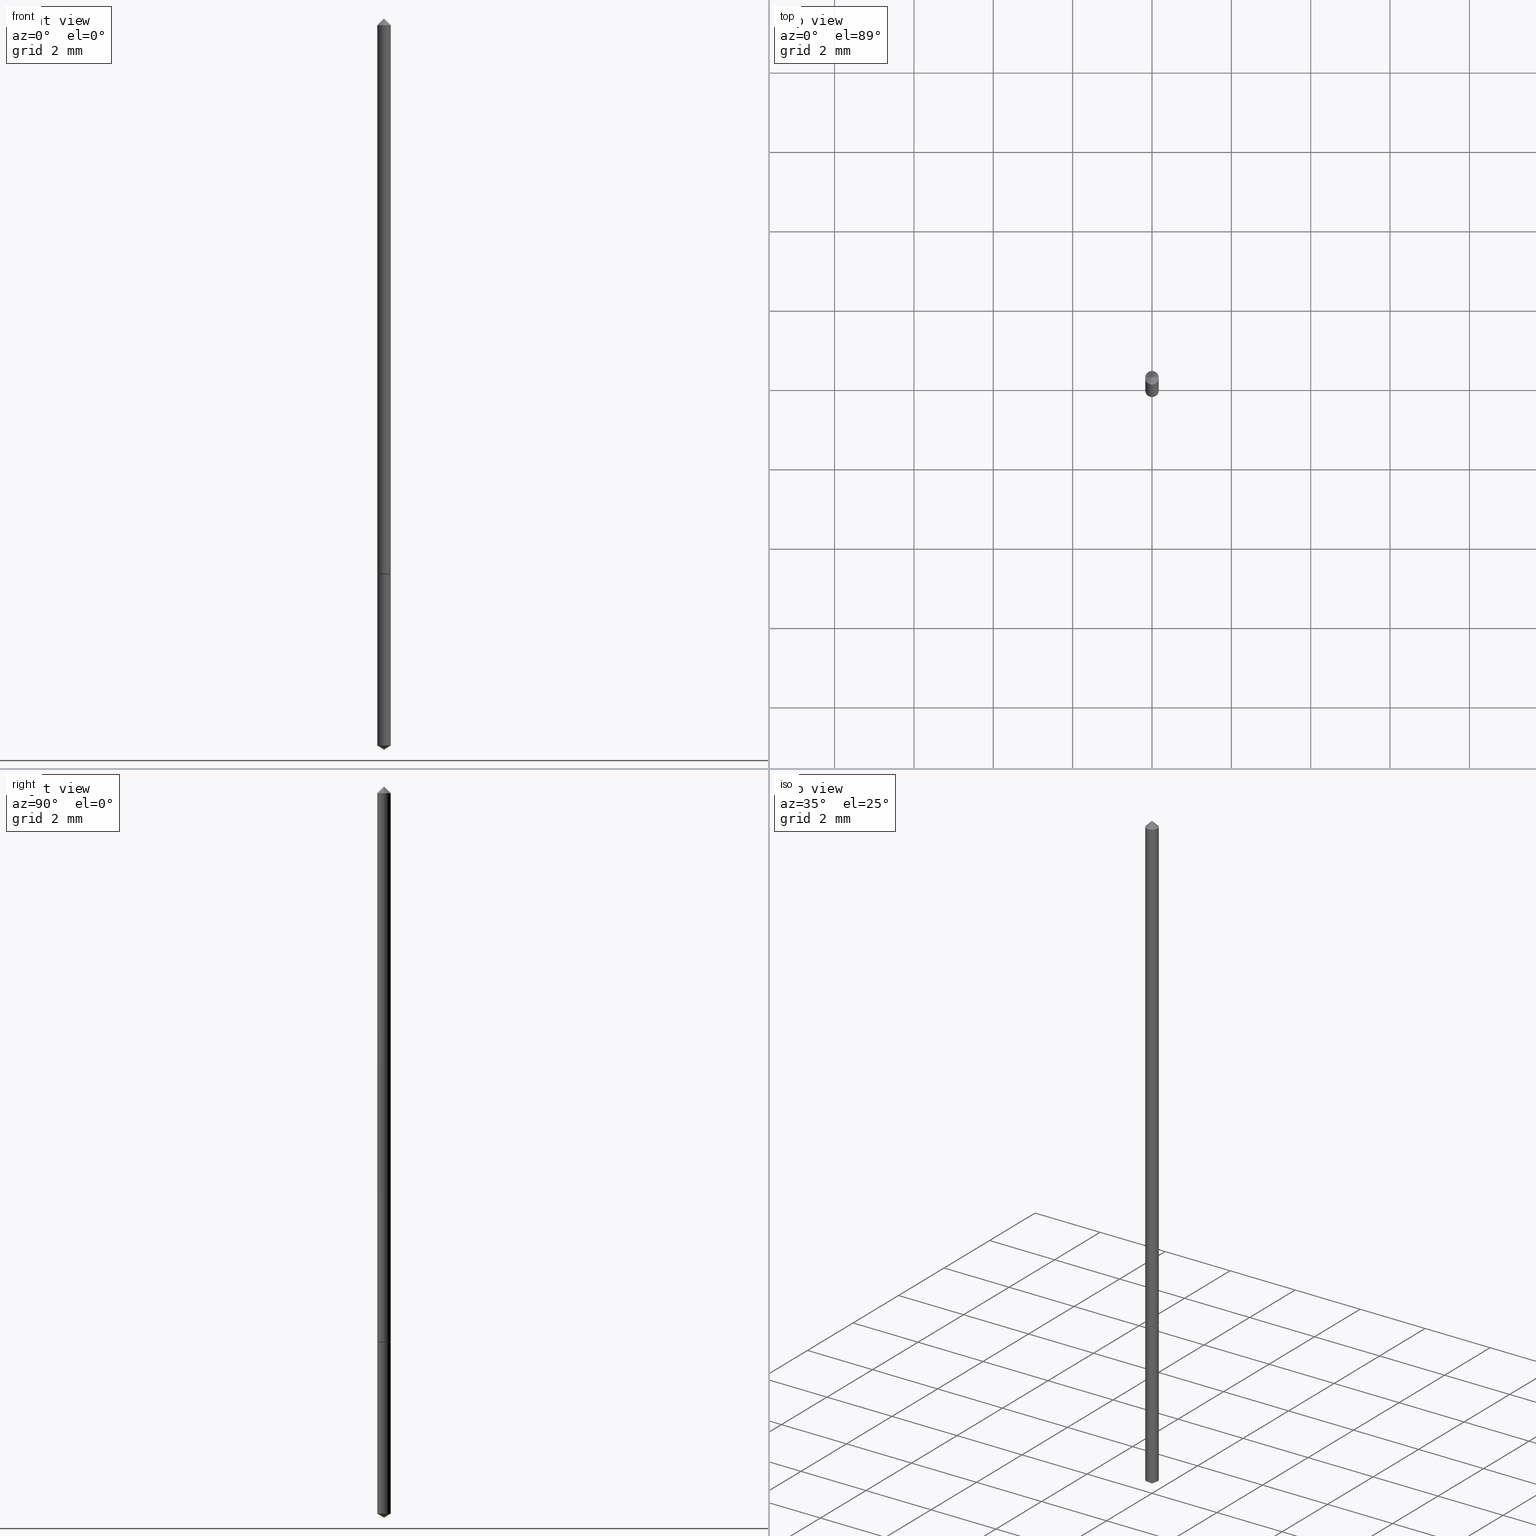
[diagram: canonical four-view strip — front | top / right | iso, engineering-drawing reading convention]
A machine part, canonical four-view strip (front | top / right | iso — engineering-drawing reading convention). The complete STEP part file that produces these views, byte-faithful:
ISO-10303-21;
HEADER;
FILE_DESCRIPTION (( 'STEP AP203' ),
    '1' );
FILE_NAME ('51080.STEP',
    '2024-04-22T18:25:43',
    ( '' ),
    ( '' ),
    'SwSTEP 2.0',
    'SolidWorks 2023',
    '' );
FILE_SCHEMA (( 'CONFIG_CONTROL_DESIGN' ));
ENDSEC;

DATA;
#1 = CARTESIAN_POINT ( 'NONE',  ( 0.000000000000000000, 0.000000000000000000, 0.000000000000000000 ) ) ;
#2 = DIRECTION ( 'NONE',  ( -1.000000000000000000, 6.982962677686266711E-15, 0.000000000000000000 ) ) ;
#3 = FACE_OUTER_BOUND ( 'NONE', #212, .T. ) ;
#4 = ORIENTED_EDGE ( 'NONE', *, *, #35, .F. ) ;
#5 = LINE ( 'NONE', #342, #113 ) ;
#6 = AXIS2_PLACEMENT_3D ( 'NONE', #131, #194, #250 ) ;
#7 = PERSON_AND_ORGANIZATION_ROLE ( 'creator' ) ;
#8 = DIRECTION ( 'NONE',  ( -2.445468806185136597E-29, 3.491481338843145583E-15, 1.000000000000000000 ) ) ;
#9 = EDGE_CURVE ( 'NONE', #336, #38, #234, .T. ) ;
#10 = PERSON_AND_ORGANIZATION ( #245, #51 ) ;
#11 = ORIENTED_EDGE ( 'NONE', *, *, #42, .F. ) ;
#12 = CIRCLE ( 'NONE', #67, 0.006250000000000069736 ) ;
#13 = PERSON_AND_ORGANIZATION ( #245, #51 ) ;
#14 = ORIENTED_EDGE ( 'NONE', *, *, #141, .F. ) ;
#15 = PERSON_AND_ORGANIZATION ( #245, #51 ) ;
#16 = EDGE_CURVE ( 'NONE', #38, #173, #151, .T. ) ;
#17 = EDGE_LOOP ( 'NONE', ( #195, #357 ) ) ;
#18 = LOCAL_TIME ( 14, 25, 43.00000000000000000, #43 ) ;
#19 = DIRECTION ( 'NONE',  ( 1.000000000000000000, -6.982962677686267499E-15, 0.000000000000000000 ) ) ;
#20 = CIRCLE ( 'NONE', #117, 0.006749999999999999924 ) ;
#21 = DIRECTION ( 'NONE',  ( -2.445468806185136597E-29, 3.491481338843145583E-15, 1.000000000000000000 ) ) ;
#22 = DIRECTION ( 'NONE',  ( 1.000000000000000000, -6.982962677686254878E-15, 0.000000000000000000 ) ) ;
#23 = FACE_OUTER_BOUND ( 'NONE', #94, .T. ) ;
#24 = AXIS2_PLACEMENT_3D ( 'NONE', #280, #21, #22 ) ;
#25 = ADVANCED_FACE ( 'NONE', ( #102 ), #185, .T. ) ;
#26 = DIRECTION ( 'NONE',  ( 2.445574428744949596E-29, -3.491330081325830103E-15, -1.000000000000000000 ) ) ;
#27 = CARTESIAN_POINT ( 'NONE',  ( 7.642090019328600035E-31, -1.091087918388489897E-16, -0.03125000000000020123 ) ) ;
#28 = VECTOR ( 'NONE', #78, 39.37007874015748854 ) ;
#29 = DIRECTION ( 'NONE',  ( -2.445574428744949876E-29, 3.491330081325830103E-15, 1.000000000000000000 ) ) ;
#30 = ADVANCED_FACE ( 'NONE', ( #354 ), #125, .T. ) ;
#31 = EDGE_LOOP ( 'NONE', ( #80, #188, #87, #157 ) ) ;
#32 = PRODUCT_DEFINITION_FORMATION_WITH_SPECIFIED_SOURCE ( 'ANY', '', #243, .NOT_KNOWN. ) ;
#33 = CARTESIAN_POINT ( 'NONE',  ( 4.796163466382499209E-17, 0.006749999999997394369, -0.7459441908215641570 ) ) ;
#34 = AXIS2_PLACEMENT_3D ( 'NONE', #50, #281, #160 ) ;
#35 = EDGE_CURVE ( 'NONE', #336, #305, #45, .T. ) ;
#36 = APPLICATION_PROTOCOL_DEFINITION ( 'international standard', 'config_control_design', 1994, #158 ) ;
#37 = CC_DESIGN_PERSON_AND_ORGANIZATION_ASSIGNMENT ( #15, #91, ( #243 ) ) ;
#38 = VERTEX_POINT ( 'NONE', #320 ) ;
#39 = DATE_AND_TIME ( #326, #288 ) ;
#40 = DIRECTION ( 'NONE',  ( 1.000000000000000000, -6.982962677686260400E-15, 0.000000000000000000 ) ) ;
#41 = VERTEX_POINT ( 'NONE', #291 ) ;
#42 = EDGE_CURVE ( 'NONE', #305, #173, #85, .T. ) ;
#43 = COORDINATED_UNIVERSAL_TIME_OFFSET ( 5, 0, .BEHIND. ) ;
#44 = EDGE_LOOP ( 'NONE', ( #144, #92, #294 ) ) ;
#45 = LINE ( 'NONE', #275, #191 ) ;
#46 = DESIGN_CONTEXT ( 'detailed design', #158, 'design' ) ;
#47 = LINE ( 'NONE', #225, #101 ) ;
#48 = VECTOR ( 'NONE', #362, 39.37007874015748143 ) ;
#49 = DIRECTION ( 'NONE',  ( -2.445574428744949876E-29, 3.491330081325830103E-15, 1.000000000000000000 ) ) ;
#50 = CARTESIAN_POINT ( 'NONE',  ( 1.408590032362638810E-29, -2.011093251173652181E-15, -0.5760000000000000675 ) ) ;
#51 = ORGANIZATION ( 'UNSPECIFIED', 'UNSPECIFIED', '' ) ;
#52 = PLANE ( 'NONE',  #259 ) ;
#53 = ORIENTED_EDGE ( 'NONE', *, *, #145, .F. ) ;
#54 = AXIS2_PLACEMENT_3D ( 'NONE', #331, #70, #159 ) ;
#55 = FACE_OUTER_BOUND ( 'NONE', #264, .T. ) ;
#56 = DIRECTION ( 'NONE',  ( 0.7071067811865450192, -7.319954787623246579E-15, -0.7071067811865500152 ) ) ;
#57 = CIRCLE ( 'NONE', #235, 0.006750000000000004260 ) ;
#58 = CARTESIAN_POINT ( 'NONE',  ( -0.006750000000000004260, -6.197379376446666772E-17, -0.03125000000000020123 ) ) ;
#59 = FACE_OUTER_BOUND ( 'NONE', #44, .T. ) ;
#60 = AXIS2_PLACEMENT_3D ( 'NONE', #84, #313, #262 ) ;
#61 = ORIENTED_EDGE ( 'NONE', *, *, #282, .F. ) ;
#62 = VERTEX_POINT ( 'NONE', #193 ) ;
#63 = APPROVAL_DATE_TIME ( #323, #270 ) ;
#64 = ORIENTED_EDGE ( 'NONE', *, *, #347, .F. ) ;
#65 = APPROVAL ( #152, 'UNSPECIFIED' ) ;
#66 = APPROVAL_STATUS ( 'not_yet_approved' ) ;
#67 = AXIS2_PLACEMENT_3D ( 'NONE', #170, #227, #116 ) ;
#68 = ORIENTED_EDGE ( 'NONE', *, *, #169, .F. ) ;
#69 = DIRECTION ( 'NONE',  ( -2.445574428744949876E-29, 3.491330081325830103E-15, 1.000000000000000000 ) ) ;
#70 = DIRECTION ( 'NONE',  ( -2.445468806185136597E-29, 3.491481338843145583E-15, 1.000000000000000000 ) ) ;
#71 = CC_DESIGN_APPROVAL ( #65, ( #306 ) ) ;
#72 = EDGE_CURVE ( 'NONE', #351, #336, #307, .T. ) ;
#73 = FACE_OUTER_BOUND ( 'NONE', #286, .T. ) ;
#74 = LINE ( 'NONE', #107, #260 ) ;
#75 = ORIENTED_EDGE ( 'NONE', *, *, #109, .F. ) ;
#76 = DIRECTION ( 'NONE',  ( -2.445574428744949876E-29, 3.491330081325830103E-15, 1.000000000000000000 ) ) ;
#77 = ADVANCED_FACE ( 'NONE', ( #110 ), #52, .F. ) ;
#78 = DIRECTION ( 'NONE',  ( -5.985567269335975989E-15, -0.8571673007021152202, 0.5150380749100490485 ) ) ;
#79 = CLOSED_SHELL ( 'NONE', ( #25, #104, #340, #355, #215, #231, #254 ) ) ;
#80 = ORIENTED_EDGE ( 'NONE', *, *, #347, .T. ) ;
#81 = DIRECTION ( 'NONE',  ( 0.000000000000000000, 0.000000000000000000, 1.000000000000000000 ) ) ;
#82 = EDGE_CURVE ( 'NONE', #97, #244, #283, .T. ) ;
#83 = DIRECTION ( 'NONE',  ( -6.982962677686268288E-15, -1.000000000000000000, 3.468864327941521245E-15 ) ) ;
#84 = CARTESIAN_POINT ( 'NONE',  ( 1.408590032362638810E-29, -2.011093251173652181E-15, -0.5760000000000000675 ) ) ;
#85 = CIRCLE ( 'NONE', #122, 0.006750000000000004260 ) ;
#86 = DIRECTION ( 'NONE',  ( 1.000000000000000000, -6.982962677686267499E-15, 0.000000000000000000 ) ) ;
#87 = ORIENTED_EDGE ( 'NONE', *, *, #88, .F. ) ;
#88 = EDGE_CURVE ( 'NONE', #244, #224, #164, .T. ) ;
#89 =( CONVERSION_BASED_UNIT ( 'INCH', #348 ) LENGTH_UNIT ( ) NAMED_UNIT ( #319 ) );
#90 =( GEOMETRIC_REPRESENTATION_CONTEXT ( 3 ) GLOBAL_UNCERTAINTY_ASSIGNED_CONTEXT ( ( #219 ) ) GLOBAL_UNIT_ASSIGNED_CONTEXT ( ( #89, #168, #205 ) ) REPRESENTATION_CONTEXT ( 'NONE', 'WORKASPACE' ) );
#91 = PERSON_AND_ORGANIZATION_ROLE ( 'design_owner' ) ;
#92 = ORIENTED_EDGE ( 'NONE', *, *, #312, .T. ) ;
#93 = VECTOR ( 'NONE', #364, 39.37007874015748143 ) ;
#94 = EDGE_LOOP ( 'NONE', ( #242, #322, #180, #182 ) ) ;
#95 = COORDINATED_UNIVERSAL_TIME_OFFSET ( 5, 0, .BEHIND. ) ;
#96 = ORIENTED_EDGE ( 'NONE', *, *, #35, .T. ) ;
#97 = VERTEX_POINT ( 'NONE', #334 ) ;
#98 = MANIFOLD_SOLID_BREP ( 'Body-Move/Copy2[1]', #178 ) ;
#99 = PERSON_AND_ORGANIZATION ( #245, #51 ) ;
#100 = AXIS2_PLACEMENT_3D ( 'NONE', #108, #49, #161 ) ;
#101 = VECTOR ( 'NONE', #309, 39.37007874015748143 ) ;
#102 = FACE_OUTER_BOUND ( 'NONE', #176, .T. ) ;
#103 = CARTESIAN_POINT ( 'NONE',  ( 4.796163466382502906E-17, 0.006749999999997988512, -0.5760000000000000675 ) ) ;
#104 = ADVANCED_FACE ( 'NONE', ( #223 ), #337, .T. ) ;
#105 = CYLINDRICAL_SURFACE ( 'NONE', #54, 0.006750000000000037220 ) ;
#106 = CC_DESIGN_APPROVAL ( #335, ( #252 ) ) ;
#107 = CARTESIAN_POINT ( 'NONE',  ( 4.796163466382084440E-17, 0.006749999999997988512, -0.5760000000000000675 ) ) ;
#108 = CARTESIAN_POINT ( 'NONE',  ( 1.408590032362638810E-29, -2.011093251173652181E-15, -0.5760000000000000675 ) ) ;
#109 = EDGE_CURVE ( 'NONE', #327, #224, #74, .T. ) ;
#110 = FACE_OUTER_BOUND ( 'NONE', #238, .T. ) ;
#111 = DIRECTION ( 'NONE',  ( 1.000000000000000000, 0.000000000000000000, 0.000000000000000000 ) ) ;
#112 = AXIS2_PLACEMENT_3D ( 'NONE', #266, #247, #214 ) ;
#113 = VECTOR ( 'NONE', #56, 39.37007874015748143 ) ;
#114 = CARTESIAN_POINT ( 'NONE',  ( -0.006250000000000069736, -1.964035103014534087E-15, -0.5760000000000000675 ) ) ;
#115 = DIRECTION ( 'NONE',  ( -2.445574428744949876E-29, 3.491330081325830103E-15, 1.000000000000000000 ) ) ;
#116 = DIRECTION ( 'NONE',  ( 1.000000000000000000, -6.982962677686254878E-15, 0.000000000000000000 ) ) ;
#117 = AXIS2_PLACEMENT_3D ( 'NONE', #146, #285, #203 ) ;
#118 = CARTESIAN_POINT ( 'NONE',  ( -4.713499807436820261E-17, -0.006750000000002011336, -0.5760000000000000675 ) ) ;
#119 = ORIENTED_EDGE ( 'NONE', *, *, #169, .T. ) ;
#120 = CALENDAR_DATE ( 2024, 22, 4 ) ;
#121 = DIRECTION ( 'NONE',  ( -2.445468806185136597E-29, 3.491481338843145583E-15, 1.000000000000000000 ) ) ;
#122 = AXIS2_PLACEMENT_3D ( 'NONE', #149, #121, #19 ) ;
#123 = DATE_TIME_ROLE ( 'classification_date' ) ;
#124 = CIRCLE ( 'NONE', #229, 0.006749999999999999924 ) ;
#125 = CYLINDRICAL_SURFACE ( 'NONE', #208, 0.006749999999999999924 ) ;
#126 = PERSON_AND_ORGANIZATION ( #245, #51 ) ;
#127 = ORIENTED_EDGE ( 'NONE', *, *, #82, .T. ) ;
#128 = PERSON_AND_ORGANIZATION ( #245, #51 ) ;
#129 = ORIENTED_EDGE ( 'NONE', *, *, #141, .T. ) ;
#130 = AXIS2_PLACEMENT_3D ( 'NONE', #236, #29, #83 ) ;
#131 = CARTESIAN_POINT ( 'NONE',  ( 1.407367297959546289E-29, -2.009347510504230677E-15, -0.5755000000000001226 ) ) ;
#132 = DIRECTION ( 'NONE',  ( -6.982962677686268288E-15, -1.000000000000000000, 3.468864327941521245E-15 ) ) ;
#133 = DIRECTION ( 'NONE',  ( -2.445468806185136597E-29, 3.491481338843145583E-15, 1.000000000000000000 ) ) ;
#134 = CC_DESIGN_PERSON_AND_ORGANIZATION_ASSIGNMENT ( #128, #295, ( #32 ) ) ;
#135 = CARTESIAN_POINT ( 'NONE',  ( 1.407367297959546289E-29, -2.009347510504230677E-15, -0.5755000000000001226 ) ) ;
#136 = VECTOR ( 'NONE', #296, 39.37007874015748143 ) ;
#137 = VECTOR ( 'NONE', #138, 39.37007874015748143 ) ;
#138 = DIRECTION ( 'NONE',  ( -2.445574428744950156E-29, 3.491330081325830103E-15, 1.000000000000000000 ) ) ;
#139 = CC_DESIGN_SECURITY_CLASSIFICATION ( #306, ( #32 ) ) ;
#140 = CARTESIAN_POINT ( 'NONE',  ( 1.408590032362638810E-29, -2.011093251173652181E-15, -0.5760000000000000675 ) ) ;
#141 = EDGE_CURVE ( 'NONE', #155, #97, #220, .T. ) ;
#142 = CIRCLE ( 'NONE', #6, 0.006750000000000070180 ) ;
#143 =( LENGTH_UNIT ( ) NAMED_UNIT ( * ) SI_UNIT ( $, .METRE. ) );
#144 = ORIENTED_EDGE ( 'NONE', *, *, #276, .F. ) ;
#145 = EDGE_CURVE ( 'NONE', #155, #327, #197, .T. ) ;
#146 = CARTESIAN_POINT ( 'NONE',  ( 1.824201199749608100E-29, -2.604424516735556116E-15, -0.7459441908215641570 ) ) ;
#147 = COORDINATED_UNIVERSAL_TIME_OFFSET ( 5, 0, .BEHIND. ) ;
#148 = APPROVAL_DATE_TIME ( #154, #65 ) ;
#149 = CARTESIAN_POINT ( 'NONE',  ( 7.642090019328600035E-31, -1.091087918388489897E-16, -0.03125000000000020123 ) ) ;
#150 = APPROVAL_PERSON_ORGANIZATION ( #99, #270, #321 ) ;
#151 = LINE ( 'NONE', #297, #136 ) ;
#152 = APPROVAL_STATUS ( 'not_yet_approved' ) ;
#153 = ORIENTED_EDGE ( 'NONE', *, *, #312, .F. ) ;
#154 = DATE_AND_TIME ( #350, #18 ) ;
#155 = VERTEX_POINT ( 'NONE', #167 ) ;
#156 = PRODUCT_RELATED_PRODUCT_CATEGORY ( 'detail', '', ( #243 ) ) ;
#157 = ORIENTED_EDGE ( 'NONE', *, *, #82, .F. ) ;
#158 = APPLICATION_CONTEXT ( 'configuration controlled 3d designs of mechanical parts and assemblies' ) ;
#159 = DIRECTION ( 'NONE',  ( 1.000000000000000000, -6.982962677686265922E-15, 4.876176775795935793E-29 ) ) ;
#160 = DIRECTION ( 'NONE',  ( -6.982962677686265133E-15, -1.000000000000000000, 0.000000000000000000 ) ) ;
#161 = DIRECTION ( 'NONE',  ( -6.982962677686265133E-15, -1.000000000000000000, 0.000000000000000000 ) ) ;
#162 = ORIENTED_EDGE ( 'NONE', *, *, #299, .T. ) ;
#163 = CARTESIAN_POINT ( 'NONE',  ( 1.834181888524030608E-29, -2.618497560994372478E-15, -0.7500000000000001110 ) ) ;
#164 = CIRCLE ( 'NONE', #100, 0.006749999999999999924 ) ;
#165 = CONICAL_SURFACE ( 'NONE', #179, 0.006750000000000070180, 0.7853981633974813636 ) ;
#166 = ADVANCED_FACE ( 'NONE', ( #73 ), #301, .T. ) ;
#167 = CARTESIAN_POINT ( 'NONE',  ( 1.834180821558712547E-29, -2.618497560994372478E-15, -0.7500000000000001110 ) ) ;
#168 =( NAMED_UNIT ( * ) PLANE_ANGLE_UNIT ( ) SI_UNIT ( $, .RADIAN. ) );
#169 = EDGE_CURVE ( 'NONE', #327, #97, #124, .T. ) ;
#170 = CARTESIAN_POINT ( 'NONE',  ( 1.408590032362638810E-29, -2.011093251173652181E-15, -0.5760000000000000675 ) ) ;
#171 = CIRCLE ( 'NONE', #24, 0.006250000000000069736 ) ;
#172 = DIRECTION ( 'NONE',  ( 2.445468806185136597E-29, -3.491481338843145583E-15, -1.000000000000000000 ) ) ;
#173 = VERTEX_POINT ( 'NONE', #196 ) ;
#174 = EDGE_CURVE ( 'NONE', #62, #38, #47, .T. ) ;
#175 = CARTESIAN_POINT ( 'NONE',  ( 7.642090019328600035E-31, -1.091087918388489897E-16, -0.03125000000000020123 ) ) ;
#176 = EDGE_LOOP ( 'NONE', ( #153, #310, #210 ) ) ;
#177 = MECHANICAL_CONTEXT ( 'NONE', #317, 'mechanical' ) ;
#178 = CLOSED_SHELL ( 'NONE', ( #30, #166, #263, #206, #77 ) ) ;
#179 = AXIS2_PLACEMENT_3D ( 'NONE', #346, #230, #258 ) ;
#180 = ORIENTED_EDGE ( 'NONE', *, *, #174, .T. ) ;
#181 = EDGE_CURVE ( 'NONE', #38, #336, #142, .T. ) ;
#182 = ORIENTED_EDGE ( 'NONE', *, *, #9, .F. ) ;
#183 = PERSON_AND_ORGANIZATION_ROLE ( 'classification_officer' ) ;
#184 = ORIENTED_EDGE ( 'NONE', *, *, #181, .T. ) ;
#185 = CONICAL_SURFACE ( 'NONE', #112, 0.006750000000000004260, 0.7853981633974447263 ) ;
#186 = AXIS2_PLACEMENT_3D ( 'NONE', #253, #76, #132 ) ;
#187 = DATE_TIME_ROLE ( 'creation_date' ) ;
#188 = ORIENTED_EDGE ( 'NONE', *, *, #109, .T. ) ;
#189 = DIRECTION ( 'NONE',  ( -6.982962677686265133E-15, -1.000000000000000000, 0.000000000000000000 ) ) ;
#190 = DIRECTION ( 'NONE',  ( -6.982962677686265133E-15, -1.000000000000000000, 0.000000000000000000 ) ) ;
#191 = VECTOR ( 'NONE', #207, 39.37007874015748143 ) ;
#192 = CONICAL_SURFACE ( 'NONE', #130, 65.52281426576981005, 1.029744258676663859 ) ;
#193 = CARTESIAN_POINT ( 'NONE',  ( 0.006250000000000069736, -2.054736767909191742E-15, -0.5760000000000000675 ) ) ;
#194 = DIRECTION ( 'NONE',  ( -2.445468806185136597E-29, 3.491481338843145583E-15, 1.000000000000000000 ) ) ;
#195 = ORIENTED_EDGE ( 'NONE', *, *, #299, .F. ) ;
#196 = CARTESIAN_POINT ( 'NONE',  ( 0.006750000000000004260, -1.562437899132313240E-16, -0.03125000000000020123 ) ) ;
#197 = LINE ( 'NONE', #163, #93 ) ;
#198 = CIRCLE ( 'NONE', #290, 0.006749999999999999924 ) ;
#199 = CARTESIAN_POINT ( 'NONE',  ( -0.006750000000000070180, -1.961385875840423280E-15, -0.5755000000000001226 ) ) ;
#200 = FACE_OUTER_BOUND ( 'NONE', #17, .T. ) ;
#201 = DIRECTION ( 'NONE',  ( -6.982962677686265133E-15, -1.000000000000000000, 0.000000000000000000 ) ) ;
#202 = CC_DESIGN_PERSON_AND_ORGANIZATION_ASSIGNMENT ( #241, #7, ( #252 ) ) ;
#203 = DIRECTION ( 'NONE',  ( -6.982962677686265133E-15, -1.000000000000000000, 0.000000000000000000 ) ) ;
#204 = PRODUCT_DEFINITION_SHAPE ( 'NONE', 'NONE',  #252 ) ;
#205 =( NAMED_UNIT ( * ) SI_UNIT ( $, .STERADIAN. ) SOLID_ANGLE_UNIT ( ) );
#206 = ADVANCED_FACE ( 'NONE', ( #55 ), #360, .T. ) ;
#207 = DIRECTION ( 'NONE',  ( -2.445468806185136877E-29, 3.491481338843145188E-15, 1.000000000000000000 ) ) ;
#208 = AXIS2_PLACEMENT_3D ( 'NONE', #330, #69, #189 ) ;
#209 = DATE_AND_TIME ( #246, #239 ) ;
#210 = ORIENTED_EDGE ( 'NONE', *, *, #304, .T. ) ;
#211 = APPROVAL_STATUS ( 'not_yet_approved' ) ;
#212 = EDGE_LOOP ( 'NONE', ( #53, #129, #68 ) ) ;
#213 = APPROVAL_DATE_TIME ( #265, #335 ) ;
#214 = DIRECTION ( 'NONE',  ( -1.000000000000000000, 6.982962677686266711E-15, 0.000000000000000000 ) ) ;
#215 = ADVANCED_FACE ( 'NONE', ( #23 ), #333, .T. ) ;
#216 = CARTESIAN_POINT ( 'NONE',  ( 1.407367297959546289E-29, -2.009347510504230677E-15, -0.5755000000000001226 ) ) ;
#217 = FACE_OUTER_BOUND ( 'NONE', #249, .T. ) ;
#218 = APPROVAL_PERSON_ORGANIZATION ( #126, #65, #353 ) ;
#219 = UNCERTAINTY_MEASURE_WITH_UNIT (LENGTH_MEASURE( 1.000000000000000082E-05 ), #89, 'distance_accuracy_value', 'NONE');
#220 = LINE ( 'NONE', #256, #28 ) ;
#221 = CONICAL_SURFACE ( 'NONE', #277, 0.006750000000000004260, 0.7853981633974447263 ) ;
#222 = CARTESIAN_POINT ( 'NONE',  ( 1.408590032362638810E-29, -2.011093251173652181E-15, -0.5760000000000000675 ) ) ;
#223 = FACE_OUTER_BOUND ( 'NONE', #261, .T. ) ;
#224 = VERTEX_POINT ( 'NONE', #103 ) ;
#225 = CARTESIAN_POINT ( 'NONE',  ( 0.006750000000000070180, -2.056482508578613246E-15, -0.5755000000000001226 ) ) ;
#226 = ORIENTED_EDGE ( 'NONE', *, *, #174, .F. ) ;
#227 = DIRECTION ( 'NONE',  ( -2.445468806185136597E-29, 3.491481338843145583E-15, 1.000000000000000000 ) ) ;
#228 = AXIS2_PLACEMENT_3D ( 'NONE', #216, #8, #40 ) ;
#229 = AXIS2_PLACEMENT_3D ( 'NONE', #278, #251, #190 ) ;
#230 = DIRECTION ( 'NONE',  ( -2.445468806185136597E-29, 3.491481338843145583E-15, 1.000000000000000000 ) ) ;
#231 = ADVANCED_FACE ( 'NONE', ( #217 ), #105, .T. ) ;
#232 = CARTESIAN_POINT ( 'NONE',  ( -0.006750000000000004260, -1.011266516507730717E-15, -0.03125000000000020123 ) ) ;
#233 = FACE_OUTER_BOUND ( 'NONE', #272, .T. ) ;
#234 = CIRCLE ( 'NONE', #228, 0.006750000000000070180 ) ;
#235 = AXIS2_PLACEMENT_3D ( 'NONE', #175, #314, #86 ) ;
#236 = CARTESIAN_POINT ( 'NONE',  ( -9.444833784164006331E-28, 1.348353555243539943E-13, 38.62007874015748143 ) ) ;
#237 = ADVANCED_BREP_SHAPE_REPRESENTATION ( '51080', ( #98, #345, #298 ), #90 ) ;
#238 = EDGE_LOOP ( 'NONE', ( #352, #308 ) ) ;
#239 = LOCAL_TIME ( 14, 25, 43.00000000000000000, #293 ) ;
#240 = EDGE_CURVE ( 'NONE', #351, #62, #171, .T. ) ;
#241 = PERSON_AND_ORGANIZATION ( #245, #51 ) ;
#242 = ORIENTED_EDGE ( 'NONE', *, *, #72, .F. ) ;
#243 = PRODUCT ( '51080', '51080', '', ( #177 ) ) ;
#244 = VERTEX_POINT ( 'NONE', #118 ) ;
#245 = PERSON ( 'UNSPECIFIED', 'UNSPECIFIED', 'UNSPECIFIED', ('UNSPECIFIED'), ('UNSPECIFIED'), ('UNSPECIFIED') ) ;
#246 = CALENDAR_DATE ( 2024, 22, 4 ) ;
#247 = DIRECTION ( 'NONE',  ( 2.445468806185136597E-29, -3.491481338843145583E-15, -1.000000000000000000 ) ) ;
#248 = LOCAL_TIME ( 14, 25, 43.00000000000000000, #289 ) ;
#249 = EDGE_LOOP ( 'NONE', ( #4, #292, #284, #11 ) ) ;
#250 = DIRECTION ( 'NONE',  ( 1.000000000000000000, -6.982962677686260400E-15, 0.000000000000000000 ) ) ;
#251 = DIRECTION ( 'NONE',  ( -2.445574428744949876E-29, 3.491330081325830103E-15, 1.000000000000000000 ) ) ;
#252 = PRODUCT_DEFINITION ( 'UNKNOWN', '', #32, #46 ) ;
#253 = CARTESIAN_POINT ( 'NONE',  ( -9.444833784164006331E-28, 1.348353555243539943E-13, 38.62007874015748143 ) ) ;
#254 = ADVANCED_FACE ( 'NONE', ( #59 ), #221, .T. ) ;
#255 = DIRECTION ( 'NONE',  ( -2.445468806185136597E-29, 3.491481338843145583E-15, 1.000000000000000000 ) ) ;
#256 = CARTESIAN_POINT ( 'NONE',  ( 1.834059144369807553E-29, -2.618671809654320047E-15, -0.7500000000000001110 ) ) ;
#257 = CC_DESIGN_PERSON_AND_ORGANIZATION_ASSIGNMENT ( #273, #268, ( #32 ) ) ;
#258 = DIRECTION ( 'NONE',  ( 1.000000000000000000, -6.982962677686260400E-15, 0.000000000000000000 ) ) ;
#259 = AXIS2_PLACEMENT_3D ( 'NONE', #222, #26, #363 ) ;
#260 = VECTOR ( 'NONE', #300, 39.37007874015748143 ) ;
#261 = EDGE_LOOP ( 'NONE', ( #184, #96, #324, #349 ) ) ;
#262 = DIRECTION ( 'NONE',  ( 1.000000000000000000, -6.982962677686265922E-15, 4.876176775795935793E-29 ) ) ;
#263 = ADVANCED_FACE ( 'NONE', ( #3 ), #192, .T. ) ;
#264 = EDGE_LOOP ( 'NONE', ( #75, #119, #127, #61 ) ) ;
#265 = DATE_AND_TIME ( #120, #267 ) ;
#266 = CARTESIAN_POINT ( 'NONE',  ( 7.642090019328600035E-31, -1.091087918388489897E-16, -0.03125000000000020123 ) ) ;
#267 = LOCAL_TIME ( 14, 25, 43.00000000000000000, #147 ) ;
#268 = PERSON_AND_ORGANIZATION_ROLE ( 'design_supplier' ) ;
#269 = ORIENTED_EDGE ( 'NONE', *, *, #145, .T. ) ;
#270 = APPROVAL ( #211, 'UNSPECIFIED' ) ;
#271 = SHAPE_DEFINITION_REPRESENTATION ( #204, #237 ) ;
#272 = EDGE_LOOP ( 'NONE', ( #162, #338, #274, #226 ) ) ;
#273 = PERSON_AND_ORGANIZATION ( #245, #51 ) ;
#274 = ORIENTED_EDGE ( 'NONE', *, *, #181, .F. ) ;
#275 = CARTESIAN_POINT ( 'NONE',  ( -0.006750000000000037220, 4.796163466380702701E-17, -3.320281185922079994E-31 ) ) ;
#276 = EDGE_CURVE ( 'NONE', #41, #173, #5, .T. ) ;
#277 = AXIS2_PLACEMENT_3D ( 'NONE', #27, #172, #2 ) ;
#278 = CARTESIAN_POINT ( 'NONE',  ( 1.824201199749608100E-29, -2.604424516735556116E-15, -0.7459441908215641570 ) ) ;
#279 = CC_DESIGN_DATE_AND_TIME_ASSIGNMENT ( #209, #123, ( #306 ) ) ;
#280 = CARTESIAN_POINT ( 'NONE',  ( 1.408590032362638810E-29, -2.011093251173652181E-15, -0.5760000000000000675 ) ) ;
#281 = DIRECTION ( 'NONE',  ( -2.445574428744949876E-29, 3.491330081325830103E-15, 1.000000000000000000 ) ) ;
#282 = EDGE_CURVE ( 'NONE', #224, #244, #198, .T. ) ;
#283 = LINE ( 'NONE', #332, #137 ) ;
#284 = ORIENTED_EDGE ( 'NONE', *, *, #16, .T. ) ;
#285 = DIRECTION ( 'NONE',  ( -2.445574428744949876E-29, 3.491330081325830103E-15, 1.000000000000000000 ) ) ;
#286 = EDGE_LOOP ( 'NONE', ( #14, #269, #64 ) ) ;
#287 = DIRECTION ( 'NONE',  ( -0.7071067811865450192, 2.468850131082230634E-15, -0.7071067811865500152 ) ) ;
#288 = LOCAL_TIME ( 14, 25, 43.00000000000000000, #95 ) ;
#289 = COORDINATED_UNIVERSAL_TIME_OFFSET ( 5, 0, .BEHIND. ) ;
#290 = AXIS2_PLACEMENT_3D ( 'NONE', #140, #115, #201 ) ;
#291 = CARTESIAN_POINT ( 'NONE',  ( 5.916881416634599714E-31, -8.660842092418268887E-17, -0.02450000000000015013 ) ) ;
#292 = ORIENTED_EDGE ( 'NONE', *, *, #9, .T. ) ;
#293 = COORDINATED_UNIVERSAL_TIME_OFFSET ( 5, 0, .BEHIND. ) ;
#294 = ORIENTED_EDGE ( 'NONE', *, *, #42, .T. ) ;
#295 = PERSON_AND_ORGANIZATION_ROLE ( 'creator' ) ;
#296 = DIRECTION ( 'NONE',  ( -2.445468806185136877E-29, 3.491481338843145188E-15, 1.000000000000000000 ) ) ;
#297 = CARTESIAN_POINT ( 'NONE',  ( 0.006750000000000037220, -4.713499807438255618E-17, 3.291419323662274667E-31 ) ) ;
#298 = AXIS2_PLACEMENT_3D ( 'NONE', #1, #81, #111 ) ;
#299 = EDGE_CURVE ( 'NONE', #62, #351, #12, .T. ) ;
#300 = DIRECTION ( 'NONE',  ( -2.445574428744950156E-29, 3.491330081325830103E-15, 1.000000000000000000 ) ) ;
#301 = CONICAL_SURFACE ( 'NONE', #186, 65.52281426576981005, 1.029744258676663859 ) ;
#302 = DIRECTION ( 'NONE',  ( 1.000000000000000000, -6.982962677686265922E-15, 4.876176775795935793E-29 ) ) ;
#303 = CARTESIAN_POINT ( 'NONE',  ( -0.006750000000000070180, -1.961385875840423280E-15, -0.5755000000000001226 ) ) ;
#304 = EDGE_CURVE ( 'NONE', #173, #305, #57, .T. ) ;
#305 = VERTEX_POINT ( 'NONE', #232 ) ;
#306 = SECURITY_CLASSIFICATION ( '', '', #356 ) ;
#307 = LINE ( 'NONE', #303, #48 ) ;
#308 = ORIENTED_EDGE ( 'NONE', *, *, #282, .T. ) ;
#309 = DIRECTION ( 'NONE',  ( 0.7071067811865708874, -2.468850131082501607E-15, 0.7071067811865241470 ) ) ;
#310 = ORIENTED_EDGE ( 'NONE', *, *, #276, .T. ) ;
#311 = PLANE ( 'NONE',  #60 ) ;
#312 = EDGE_CURVE ( 'NONE', #41, #305, #343, .T. ) ;
#313 = DIRECTION ( 'NONE',  ( -2.438088387897960049E-29, 3.491481338843145188E-15, 1.000000000000000000 ) ) ;
#314 = DIRECTION ( 'NONE',  ( -2.445468806185136597E-29, 3.491481338843145583E-15, 1.000000000000000000 ) ) ;
#315 = CC_DESIGN_DATE_AND_TIME_ASSIGNMENT ( #39, #187, ( #252 ) ) ;
#316 = APPLICATION_PROTOCOL_DEFINITION ( 'international standard', 'config_control_design', 1994, #317 ) ;
#317 = APPLICATION_CONTEXT ( 'configuration controlled 3d designs of mechanical parts and assemblies' ) ;
#318 = CALENDAR_DATE ( 2024, 22, 4 ) ;
#319 = DIMENSIONAL_EXPONENTS ( 1.000000000000000000, 0.000000000000000000, 0.000000000000000000, 0.000000000000000000, 0.000000000000000000, 0.000000000000000000, 0.000000000000000000 ) ;
#320 = CARTESIAN_POINT ( 'NONE',  ( 0.006750000000000070180, -2.056482508578613246E-15, -0.5755000000000001226 ) ) ;
#321 = APPROVAL_ROLE ( '' ) ;
#322 = ORIENTED_EDGE ( 'NONE', *, *, #240, .T. ) ;
#323 = DATE_AND_TIME ( #318, #248 ) ;
#324 = ORIENTED_EDGE ( 'NONE', *, *, #304, .F. ) ;
#325 = CC_DESIGN_APPROVAL ( #270, ( #32 ) ) ;
#326 = CALENDAR_DATE ( 2024, 22, 4 ) ;
#327 = VERTEX_POINT ( 'NONE', #33 ) ;
#328 = AXIS2_PLACEMENT_3D ( 'NONE', #135, #255, #359 ) ;
#329 = APPROVAL_ROLE ( '' ) ;
#330 = CARTESIAN_POINT ( 'NONE',  ( 1.408590032362638810E-29, -2.011093251173652181E-15, -0.5760000000000000675 ) ) ;
#331 = CARTESIAN_POINT ( 'NONE',  ( 0.000000000000000000, 0.000000000000000000, 0.000000000000000000 ) ) ;
#332 = CARTESIAN_POINT ( 'NONE',  ( -4.713499807436820261E-17, -0.006750000000002011336, -0.5760000000000000675 ) ) ;
#333 = CONICAL_SURFACE ( 'NONE', #328, 0.006750000000000070180, 0.7853981633974813636 ) ;
#334 = CARTESIAN_POINT ( 'NONE',  ( -4.713499807436404260E-17, -0.006750000000002602876, -0.7459441908215641570 ) ) ;
#335 = APPROVAL ( #66, 'UNSPECIFIED' ) ;
#336 = VERTEX_POINT ( 'NONE', #199 ) ;
#337 = CYLINDRICAL_SURFACE ( 'NONE', #358, 0.006750000000000037220 ) ;
#338 = ORIENTED_EDGE ( 'NONE', *, *, #72, .T. ) ;
#339 = CARTESIAN_POINT ( 'NONE',  ( 0.000000000000000000, 0.000000000000000000, 0.000000000000000000 ) ) ;
#340 = ADVANCED_FACE ( 'NONE', ( #233 ), #165, .T. ) ;
#341 = VECTOR ( 'NONE', #287, 39.37007874015748143 ) ;
#342 = CARTESIAN_POINT ( 'NONE',  ( 0.006750000000000004260, -1.554171533238068655E-16, -0.03125000000000020123 ) ) ;
#343 = LINE ( 'NONE', #58, #341 ) ;
#344 = APPROVAL_PERSON_ORGANIZATION ( #13, #335, #329 ) ;
#345 = MANIFOLD_SOLID_BREP ( 'Body-Move/Copy2[2]', #79 ) ;
#346 = CARTESIAN_POINT ( 'NONE',  ( 1.407367297959546289E-29, -2.009347510504230677E-15, -0.5755000000000001226 ) ) ;
#347 = EDGE_CURVE ( 'NONE', #97, #327, #20, .T. ) ;
#348 = LENGTH_MEASURE_WITH_UNIT ( LENGTH_MEASURE( 0.02539999999999999897 ), #143 );
#349 = ORIENTED_EDGE ( 'NONE', *, *, #16, .F. ) ;
#350 = CALENDAR_DATE ( 2024, 22, 4 ) ;
#351 = VERTEX_POINT ( 'NONE', #114 ) ;
#352 = ORIENTED_EDGE ( 'NONE', *, *, #88, .T. ) ;
#353 = APPROVAL_ROLE ( '' ) ;
#354 = FACE_OUTER_BOUND ( 'NONE', #31, .T. ) ;
#355 = ADVANCED_FACE ( 'NONE', ( #200 ), #311, .F. ) ;
#356 = SECURITY_CLASSIFICATION_LEVEL ( 'unclassified' ) ;
#357 = ORIENTED_EDGE ( 'NONE', *, *, #240, .F. ) ;
#358 = AXIS2_PLACEMENT_3D ( 'NONE', #339, #133, #302 ) ;
#359 = DIRECTION ( 'NONE',  ( 1.000000000000000000, -6.982962677686260400E-15, 0.000000000000000000 ) ) ;
#360 = CYLINDRICAL_SURFACE ( 'NONE', #34, 0.006749999999999999924 ) ;
#361 = CC_DESIGN_PERSON_AND_ORGANIZATION_ASSIGNMENT ( #10, #183, ( #306 ) ) ;
#362 = DIRECTION ( 'NONE',  ( -0.7071067811865708874, 7.493145998870439357E-15, 0.7071067811865241470 ) ) ;
#363 = DIRECTION ( 'NONE',  ( 6.982962677686265922E-15, 1.000000000000000000, -3.491330081325830103E-15 ) ) ;
#364 = DIRECTION ( 'NONE',  ( 6.090539988449813934E-15, 0.8571673007021188839, 0.5150380749100431643 ) ) ;
ENDSEC;
END-ISO-10303-21;
